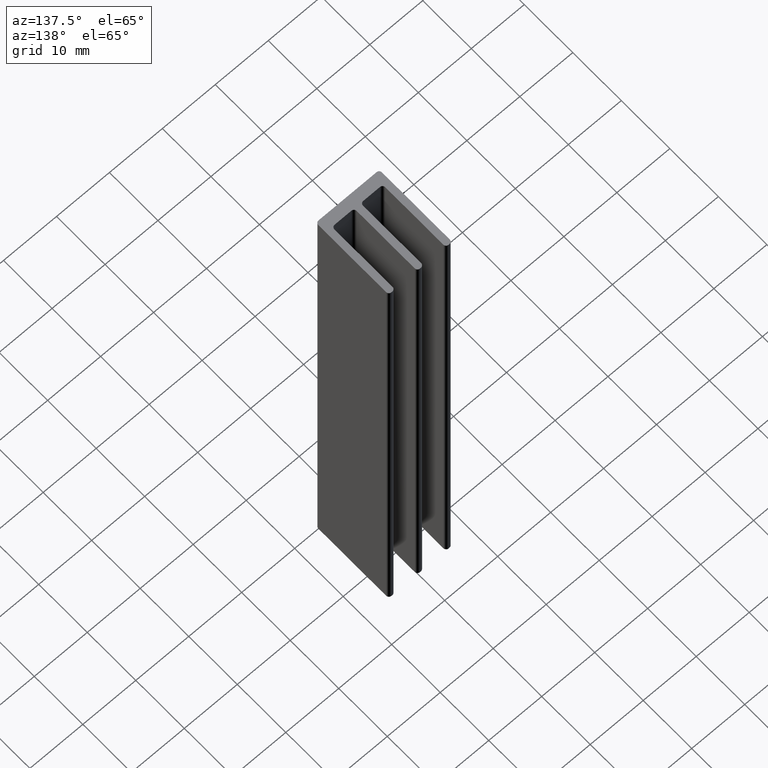
[diagram: clean part render]
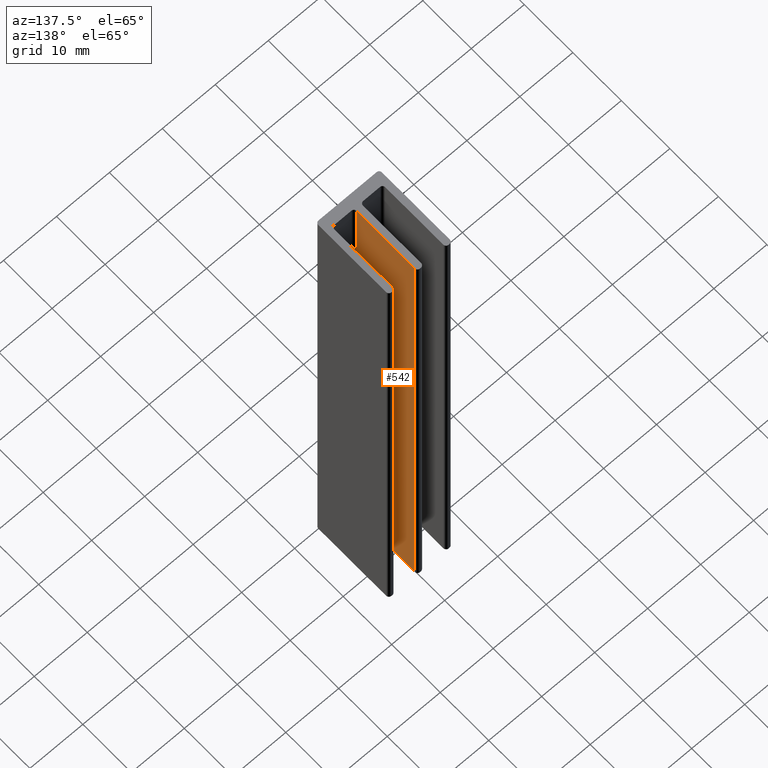
[diagram: same view with one face highlighted and labeled with its STEP entity id]
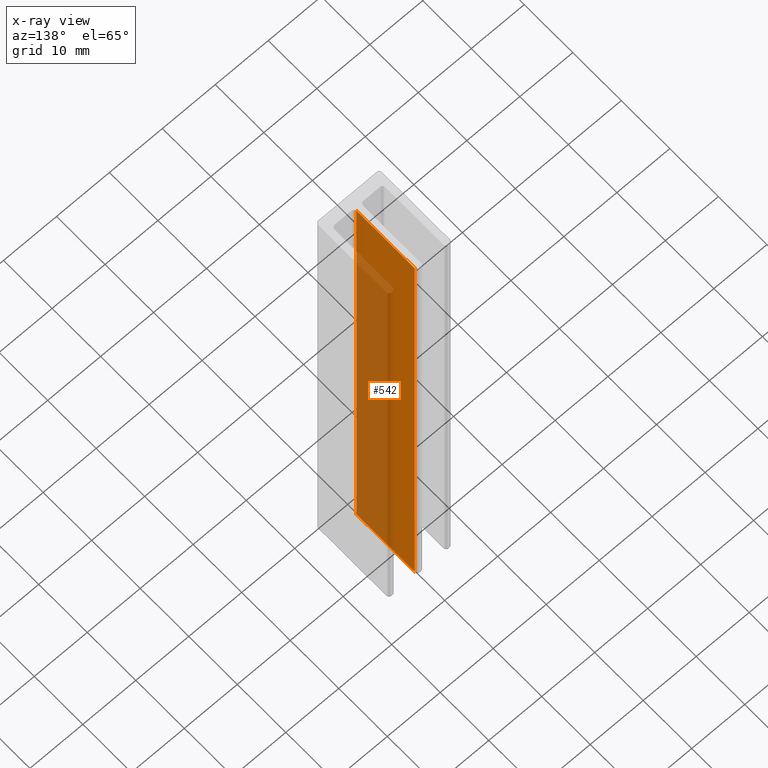
[diagram: x-ray of the same camera — body ghosted, the highlighted face saturated]
A machine part, auxiliary view. The second image highlights one B-rep face of the part: STEP entity #542.
The next image is the same camera in x-ray: the body ghosted, the highlighted face saturated — about 55% of this face is hidden behind the body in this view.
In plain terms, the highlighted planar face has unit normal (-1, -0, 0).
Its self-contained STEP definition (entity closure, byte-faithful):
#37 = EDGE_CURVE ( 'NONE', #287, #644, #333, .T. ) ;
#46 = LINE ( 'NONE', #246, #70 ) ;
#70 = VECTOR ( 'NONE', #580, 1000.000000000000000 ) ;
#73 = VERTEX_POINT ( 'NONE', #604 ) ;
#141 = FACE_OUTER_BOUND ( 'NONE', #382, .T. ) ;
#156 = DIRECTION ( 'NONE',  ( 1.807003620809174262E-17, -1.000000000000000000, 0.000000000000000000 ) ) ;
#246 = CARTESIAN_POINT ( 'NONE',  ( 0.6000000000000015321, 2.499999999999999556, 100.0000000000000000 ) ) ;
#287 = VERTEX_POINT ( 'NONE', #524 ) ;
#333 = LINE ( 'NONE', #888, #402 ) ;
#369 = CARTESIAN_POINT ( 'NONE',  ( 0.6000000000000013101, 14.49999999999999822, 100.0000000000000000 ) ) ;
#382 = EDGE_LOOP ( 'NONE', ( #441, #511, #718, #493 ) ) ;
#402 = VECTOR ( 'NONE', #694, 1000.000000000000000 ) ;
#427 = VECTOR ( 'NONE', #783, 1000.000000000000000 ) ;
#431 = AXIS2_PLACEMENT_3D ( 'NONE', #768, #717, #156 ) ;
#438 = EDGE_CURVE ( 'NONE', #644, #638, #730, .T. ) ;
#441 = ORIENTED_EDGE ( 'NONE', *, *, #478, .T. ) ;
#442 = CARTESIAN_POINT ( 'NONE',  ( 0.6000000000000013101, 14.49999999999999822, 100.0000000000000000 ) ) ;
#478 = EDGE_CURVE ( 'NONE', #73, #638, #723, .T. ) ;
#493 = ORIENTED_EDGE ( 'NONE', *, *, #593, .T. ) ;
#511 = ORIENTED_EDGE ( 'NONE', *, *, #438, .F. ) ;
#524 = CARTESIAN_POINT ( 'NONE',  ( 0.6000000000000015321, 2.499999999999999556, 100.0000000000000000 ) ) ;
#542 = ADVANCED_FACE ( 'NONE', ( #141 ), #824, .F. ) ;
#563 = VECTOR ( 'NONE', #651, 1000.000000000000000 ) ;
#580 = DIRECTION ( 'NONE',  ( -0.000000000000000000, -0.000000000000000000, -1.000000000000000000 ) ) ;
#593 = EDGE_CURVE ( 'NONE', #287, #73, #46, .T. ) ;
#604 = CARTESIAN_POINT ( 'NONE',  ( 0.6000000000000015321, 2.499999999999999556, 0.000000000000000000 ) ) ;
#638 = VERTEX_POINT ( 'NONE', #813 ) ;
#644 = VERTEX_POINT ( 'NONE', #369 ) ;
#651 = DIRECTION ( 'NONE',  ( -0.000000000000000000, -0.000000000000000000, -1.000000000000000000 ) ) ;
#694 = DIRECTION ( 'NONE',  ( -1.807003620809173954E-17, 1.000000000000000000, 0.000000000000000000 ) ) ;
#717 = DIRECTION ( 'NONE',  ( -1.000000000000000000, -1.807003620809174262E-17, 0.000000000000000000 ) ) ;
#718 = ORIENTED_EDGE ( 'NONE', *, *, #37, .F. ) ;
#723 = LINE ( 'NONE', #789, #427 ) ;
#730 = LINE ( 'NONE', #442, #563 ) ;
#768 = CARTESIAN_POINT ( 'NONE',  ( 0.6000000000000015321, 2.499999999999999556, 100.0000000000000000 ) ) ;
#783 = DIRECTION ( 'NONE',  ( -1.807003620809173954E-17, 1.000000000000000000, 0.000000000000000000 ) ) ;
#789 = CARTESIAN_POINT ( 'NONE',  ( 0.6000000000000015321, 2.499999999999999556, 0.000000000000000000 ) ) ;
#813 = CARTESIAN_POINT ( 'NONE',  ( 0.6000000000000013101, 14.49999999999999822, 0.000000000000000000 ) ) ;
#824 = PLANE ( 'NONE',  #431 ) ;
#888 = CARTESIAN_POINT ( 'NONE',  ( 0.6000000000000015321, 2.499999999999999556, 100.0000000000000000 ) ) ;